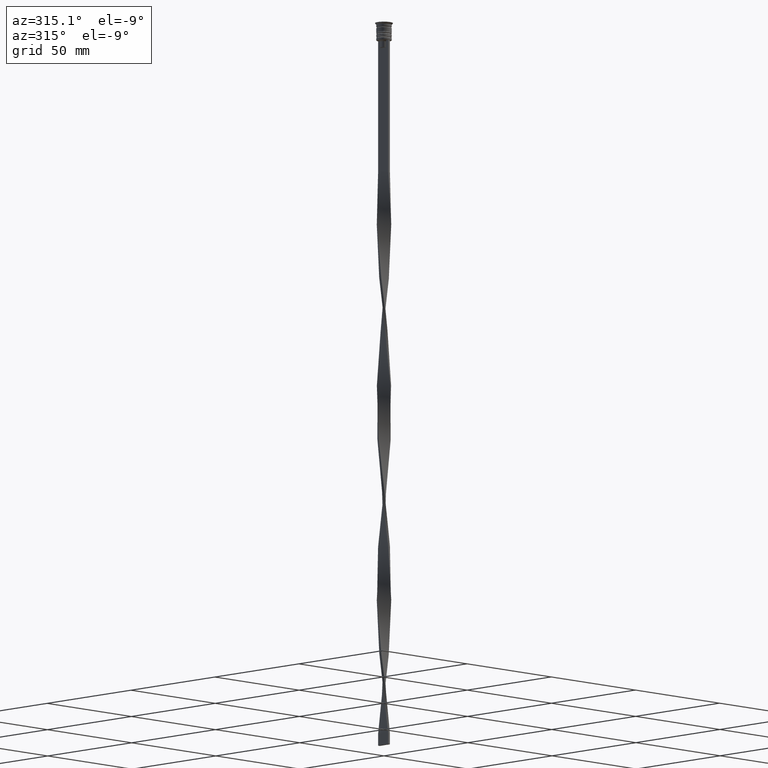
[diagram: clean part render]
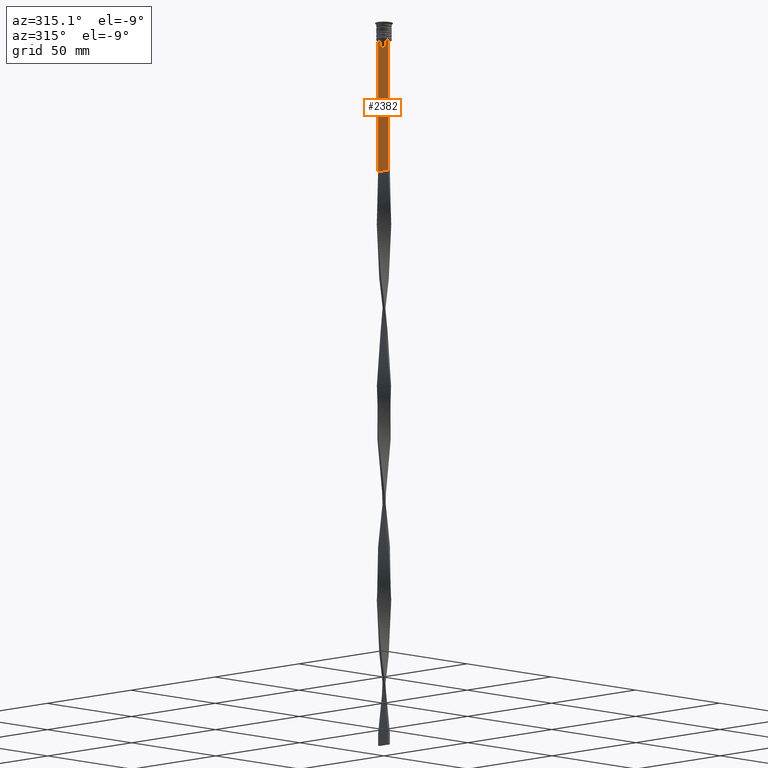
[diagram: same view with one face highlighted and labeled with its STEP entity id]
A machine part, auxiliary view. The second image highlights one B-rep face of the part: STEP entity #2382.
In plain terms, the highlighted planar face has unit normal (-1, 0, 0).
Its self-contained STEP definition (entity closure, byte-faithful):
#79 = ORIENTED_EDGE ( 'NONE', *, *, #113, .F. ) ;
#87 = EDGE_CURVE ( 'NONE', #2363, #3651, #2563, .T. ) ;
#113 = EDGE_CURVE ( 'NONE', #3525, #1776, #2870, .T. ) ;
#134 = EDGE_CURVE ( 'NONE', #2363, #1357, #1652, .T. ) ;
#155 = VERTEX_POINT ( 'NONE', #3491 ) ;
#215 = CARTESIAN_POINT ( 'NONE',  ( -0.5000000000000001110, -1.572418519351642230, -8.000000000000000000 ) ) ;
#247 = CARTESIAN_POINT ( 'NONE',  ( -0.5000000000000001110, 1.572418519351642230, 0.000000000000000000 ) ) ;
#284 = DIRECTION ( 'NONE',  ( 0.000000000000000000, 0.000000000000000000, -1.000000000000000000 ) ) ;
#293 = VECTOR ( 'NONE', #2573, 1000.000000000000000 ) ;
#463 = CARTESIAN_POINT ( 'NONE',  ( -0.5000000000000001110, 3.000000000000000000, -7.500000000000000000 ) ) ;
#484 = DIRECTION ( 'NONE',  ( 0.000000000000000000, 0.000000000000000000, 1.000000000000000000 ) ) ;
#514 = EDGE_CURVE ( 'NONE', #2375, #3525, #1688, .T. ) ;
#541 = CARTESIAN_POINT ( 'NONE',  ( -0.5000000000000001110, -1.572418519351642230, -8.000000000000000000 ) ) ;
#572 = LINE ( 'NONE', #2318, #2796 ) ;
#686 = ORIENTED_EDGE ( 'NONE', *, *, #87, .F. ) ;
#700 = LINE ( 'NONE', #2759, #3286 ) ;
#745 = CARTESIAN_POINT ( 'NONE',  ( -0.5000000000000001110, -2.091052366632653481, -7.500000000000000000 ) ) ;
#800 = CARTESIAN_POINT ( 'NONE',  ( -0.5000000000000001110, -3.000000000000000000, -7.500000000000000000 ) ) ;
#829 = DIRECTION ( 'NONE',  ( 0.000000000000000000, -1.000000000000000000, 0.000000000000000000 ) ) ;
#938 = CARTESIAN_POINT ( 'NONE',  ( -0.5000000000000001110, 1.572418519351642230, -8.000000000000000000 ) ) ;
#953 = EDGE_CURVE ( 'NONE', #1553, #2527, #700, .T. ) ;
#958 = LINE ( 'NONE', #2713, #3408 ) ;
#1014 = DIRECTION ( 'NONE',  ( 0.000000000000000000, 0.000000000000000000, -1.000000000000000000 ) ) ;
#1072 = CARTESIAN_POINT ( 'NONE',  ( -0.5000000000000001110, -1.572418519351642230, -10.49999999999999822 ) ) ;
#1087 = EDGE_CURVE ( 'NONE', #3651, #155, #3153, .T. ) ;
#1092 = DIRECTION ( 'NONE',  ( 0.000000000000000000, -1.000000000000000000, 0.000000000000000000 ) ) ;
#1213 = CARTESIAN_POINT ( 'NONE',  ( -0.5000000000000001110, 2.091052366632653481, -7.500000000000000000 ) ) ;
#1357 = VERTEX_POINT ( 'NONE', #3739 ) ;
#1376 = CARTESIAN_POINT ( 'NONE',  ( -0.5000000000000001110, -1.572418519351642230, 0.000000000000000000 ) ) ;
#1440 = VERTEX_POINT ( 'NONE', #3717 ) ;
#1454 = CARTESIAN_POINT ( 'NONE',  ( -0.5000000000000001110, -3.000000000000000000, -7.500000000000000000 ) ) ;
#1553 = VERTEX_POINT ( 'NONE', #1454 ) ;
#1569 = EDGE_LOOP ( 'NONE', ( #3704, #686, #3251, #2126, #2646, #3234, #79, #3135, #2392, #3513 ) ) ;
#1587 = EDGE_CURVE ( 'NONE', #1440, #2375, #572, .T. ) ;
#1619 = CARTESIAN_POINT ( 'NONE',  ( -0.5000000000000001110, -3.000000000000000000, -1.417237469701779329 ) ) ;
#1652 = LINE ( 'NONE', #2905, #3040 ) ;
#1688 = LINE ( 'NONE', #1376, #293 ) ;
#1774 = CARTESIAN_POINT ( 'NONE',  ( -0.5000000000000001110, -3.000000000000000000, -63.00000000000000000 ) ) ;
#1776 = VERTEX_POINT ( 'NONE', #745 ) ;
#1856 = CARTESIAN_POINT ( 'NONE',  ( -0.5000000000000001110, -3.000000000000000000, -63.00000000000000000 ) ) ;
#1895 = CARTESIAN_POINT ( 'NONE',  ( -0.5000000000000001110, 1.918907889994530658, -7.667424704779945976 ) ) ;
#1953 = EDGE_CURVE ( 'NONE', #2527, #1357, #3821, .T. ) ;
#1994 = DIRECTION ( 'NONE',  ( 0.000000000000000000, 0.000000000000000000, -1.000000000000000000 ) ) ;
#2126 = ORIENTED_EDGE ( 'NONE', *, *, #1953, .F. ) ;
#2223 = VECTOR ( 'NONE', #2326, 1000.000000000000000 ) ;
#2224 = FACE_OUTER_BOUND ( 'NONE', #1569, .T. ) ;
#2306 = CARTESIAN_POINT ( 'NONE',  ( -0.5000000000000001110, -1.746240429054158660, -7.834351036433149673 ) ) ;
#2318 = CARTESIAN_POINT ( 'NONE',  ( -0.5000000000000001110, 1.650000000000003464, -10.49999999999999822 ) ) ;
#2326 = DIRECTION ( 'NONE',  ( 0.000000000000000000, 1.000000000000000000, 0.000000000000000000 ) ) ;
#2363 = VERTEX_POINT ( 'NONE', #463 ) ;
#2375 = VERTEX_POINT ( 'NONE', #1072 ) ;
#2382 = ADVANCED_FACE ( 'NONE', ( #2224 ), #2828, .T. ) ;
#2392 = ORIENTED_EDGE ( 'NONE', *, *, #1587, .F. ) ;
#2478 = CARTESIAN_POINT ( 'NONE',  ( -0.5000000000000001110, 2.091052366632653481, -7.500000000000000000 ) ) ;
#2505 = EDGE_CURVE ( 'NONE', #1776, #1553, #958, .T. ) ;
#2527 = VERTEX_POINT ( 'NONE', #1856 ) ;
#2563 = LINE ( 'NONE', #800, #3157 ) ;
#2573 = DIRECTION ( 'NONE',  ( -0.000000000000000000, -0.000000000000000000, 1.000000000000000000 ) ) ;
#2646 = ORIENTED_EDGE ( 'NONE', *, *, #953, .F. ) ;
#2713 = CARTESIAN_POINT ( 'NONE',  ( -0.5000000000000001110, -3.000000000000000000, -7.500000000000000000 ) ) ;
#2759 = CARTESIAN_POINT ( 'NONE',  ( -0.5000000000000001110, -3.000000000000000000, -1.417237469701779329 ) ) ;
#2796 = VECTOR ( 'NONE', #829, 1000.000000000000000 ) ;
#2828 = PLANE ( 'NONE',  #3660 ) ;
#2870 = B_SPLINE_CURVE_WITH_KNOTS ( 'NONE', 3,
 ( #541, #2306, #3142, #3745 ),
 .UNSPECIFIED., .F., .F.,
 ( 4, 4 ),
 ( 0.008356915209744724543, 0.009073319521387648162 ),
 .UNSPECIFIED. ) ;
#2901 = EDGE_CURVE ( 'NONE', #155, #1440, #3832, .T. ) ;
#2905 = CARTESIAN_POINT ( 'NONE',  ( -0.5000000000000001110, 3.000000000000000000, -1.417237469701779329 ) ) ;
#3040 = VECTOR ( 'NONE', #1994, 1000.000000000000000 ) ;
#3135 = ORIENTED_EDGE ( 'NONE', *, *, #514, .F. ) ;
#3142 = CARTESIAN_POINT ( 'NONE',  ( -0.5000000000000001110, -1.918909712772151721, -7.667422931978337353 ) ) ;
#3153 = B_SPLINE_CURVE_WITH_KNOTS ( 'NONE', 3,
 ( #2478, #1895, #3353, #938 ),
 .UNSPECIFIED., .F., .F.,
 ( 4, 4 ),
 ( 0.003696428037903516997, 0.004416830248125220952 ),
 .UNSPECIFIED. ) ;
#3157 = VECTOR ( 'NONE', #1092, 1000.000000000000000 ) ;
#3234 = ORIENTED_EDGE ( 'NONE', *, *, #2505, .F. ) ;
#3251 = ORIENTED_EDGE ( 'NONE', *, *, #134, .T. ) ;
#3286 = VECTOR ( 'NONE', #1014, 1000.000000000000000 ) ;
#3334 = DIRECTION ( 'NONE',  ( 0.000000000000000000, -1.000000000000000000, 0.000000000000000000 ) ) ;
#3353 = CARTESIAN_POINT ( 'NONE',  ( -0.5000000000000001110, 1.746261636039132092, -7.834330826581080487 ) ) ;
#3393 = DIRECTION ( 'NONE',  ( -1.000000000000000000, 0.000000000000000000, 0.000000000000000000 ) ) ;
#3408 = VECTOR ( 'NONE', #3334, 1000.000000000000000 ) ;
#3491 = CARTESIAN_POINT ( 'NONE',  ( -0.5000000000000001110, 1.572418519351642230, -8.000000000000000000 ) ) ;
#3513 = ORIENTED_EDGE ( 'NONE', *, *, #2901, .F. ) ;
#3525 = VERTEX_POINT ( 'NONE', #215 ) ;
#3535 = VECTOR ( 'NONE', #284, 1000.000000000000000 ) ;
#3651 = VERTEX_POINT ( 'NONE', #1213 ) ;
#3660 = AXIS2_PLACEMENT_3D ( 'NONE', #1619, #3393, #484 ) ;
#3704 = ORIENTED_EDGE ( 'NONE', *, *, #1087, .F. ) ;
#3717 = CARTESIAN_POINT ( 'NONE',  ( -0.5000000000000001110, 1.572418519351642230, -10.49999999999999822 ) ) ;
#3739 = CARTESIAN_POINT ( 'NONE',  ( -0.5000000000000001110, 3.000000000000000000, -63.00000000000000000 ) ) ;
#3745 = CARTESIAN_POINT ( 'NONE',  ( -0.5000000000000001110, -2.091052366632653481, -7.500000000000000000 ) ) ;
#3821 = LINE ( 'NONE', #1774, #2223 ) ;
#3832 = LINE ( 'NONE', #247, #3535 ) ;